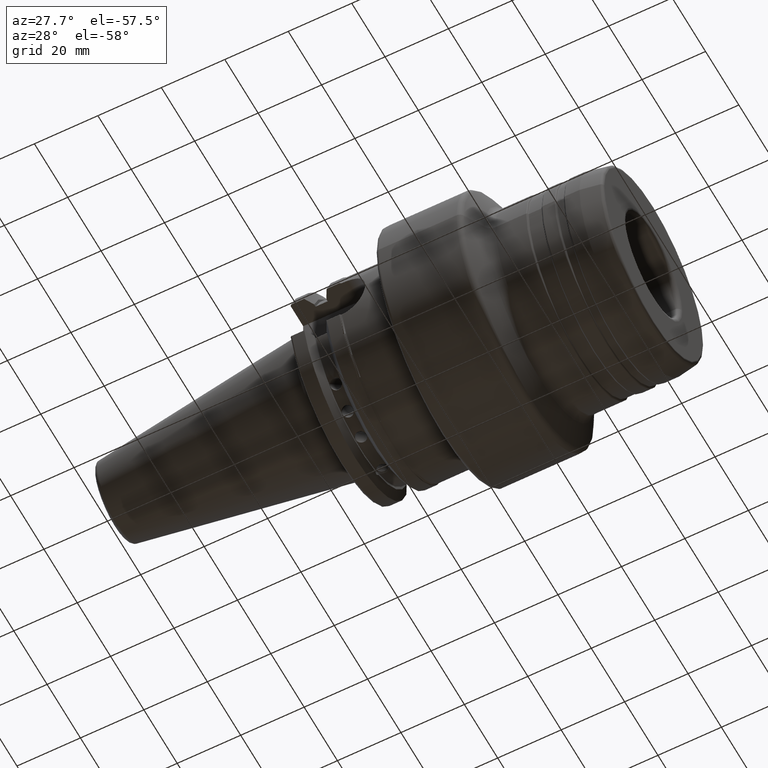
[diagram: clean part render]
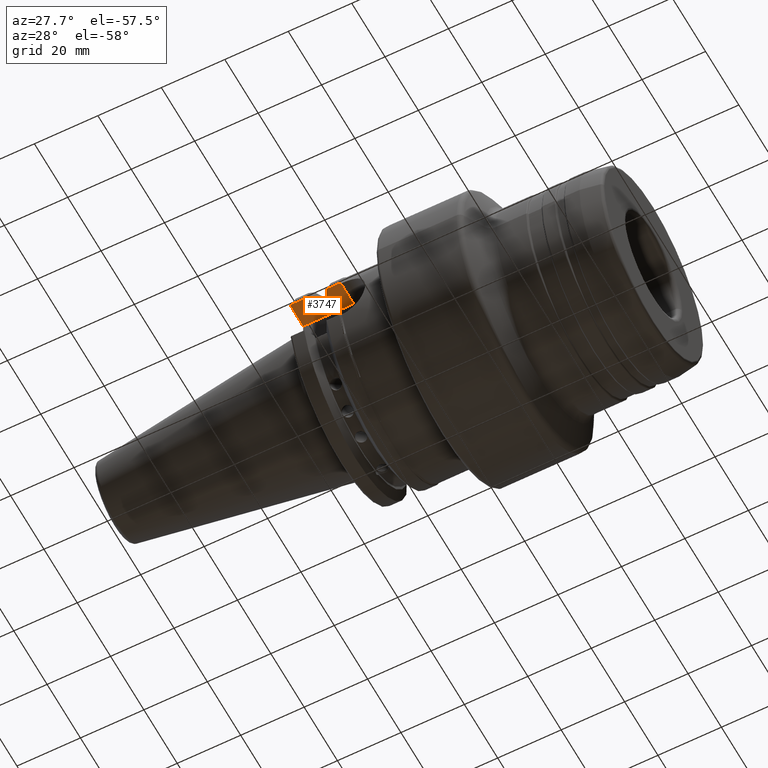
[diagram: same view with one face highlighted and labeled with its STEP entity id]
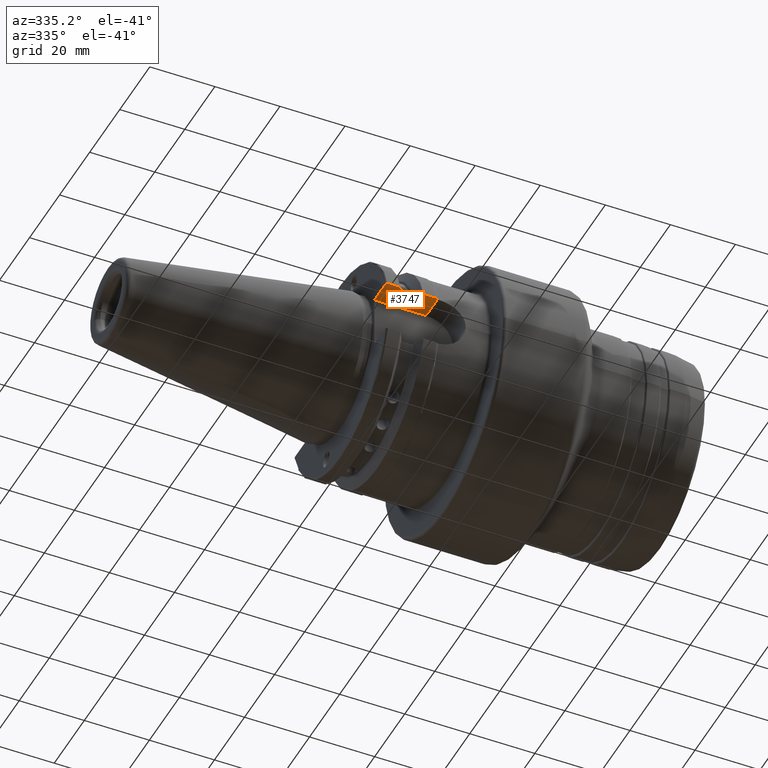
[diagram: same view with one face highlighted and labeled with its STEP entity id]
A machine part, auxiliary view. The second image highlights one B-rep face of the part: STEP entity #3747.
A second angle (auxiliary view) of the same face is appended — the face is thin or edge-on in the first view.
In plain terms, the highlighted planar face has unit normal (0, 0, 1).
Its self-contained STEP definition (entity closure, byte-faithful):
#184=DIRECTION('',(0.E0,1.E0,0.E0));
#185=VECTOR('',#184,2.894662439729E-1);
#186=CARTESIAN_POINT('',(1.25E-1,-1.187104039248E0,3.22E-1));
#187=LINE('',#186,#185);
#547=CARTESIAN_POINT('',(3.64E-1,-1.092536955897E0,3.22E-1));
#548=CARTESIAN_POINT('',(3.571028171112E-1,-1.104991274092E0,3.22E-1));
#549=CARTESIAN_POINT('',(3.431589723697E-1,-1.130135790249E0,3.22E-1));
#550=CARTESIAN_POINT('',(3.217979605852E-1,-1.168558196488E0,3.22E-1));
#551=CARTESIAN_POINT('',(3.072582409059E-1,-1.194649878777E0,3.22E-1));
#552=CARTESIAN_POINT('',(2.999141201200E-1,-1.207814555302E0,3.22E-1));
#598=DIRECTION('',(0.E0,1.E0,0.E0));
#599=VECTOR('',#598,3.235772576623E-2);
#600=CARTESIAN_POINT('',(3.64E-1,-1.092536955897E0,3.22E-1));
#601=LINE('',#600,#599);
#679=DIRECTION('',(1.E0,0.E0,0.E0));
#680=VECTOR('',#679,1.502747283333E-1);
#681=CARTESIAN_POINT('',(3.64E-1,-1.060179230130E0,3.22E-1));
#682=LINE('',#681,#680);
#817=DIRECTION('',(0.E0,1.E0,0.E0));
#818=VECTOR('',#817,3.235772576623E-2);
#819=CARTESIAN_POINT('',(5.142747283333E-1,-1.092536955897E0,3.22E-1));
#820=LINE('',#819,#818);
#903=CARTESIAN_POINT('',(5.142747283333E-1,-1.092536955897E0,3.22E-1));
#904=CARTESIAN_POINT('',(5.211719112222E-1,-1.104991274092E0,3.22E-1));
#905=CARTESIAN_POINT('',(5.351157559636E-1,-1.130135790249E0,3.22E-1));
#906=CARTESIAN_POINT('',(5.564767677481E-1,-1.168558196488E0,3.22E-1));
#907=CARTESIAN_POINT('',(5.710164874275E-1,-1.194649878777E0,3.22E-1));
#908=CARTESIAN_POINT('',(5.783606082134E-1,-1.207814555302E0,3.22E-1));
#1094=CARTESIAN_POINT('',(7.519685039370E-1,-1.199987351202E0,3.22E-1));
#1096=CARTESIAN_POINT('',(7.519685039370E-1,-1.199987351202E0,3.22E-1));
#1097=CARTESIAN_POINT('',(7.505256475699E-1,-1.200541999362E0,3.22E-1));
#1098=CARTESIAN_POINT('',(7.477256178040E-1,-1.201818855275E0,3.22E-1));
#1099=CARTESIAN_POINT('',(7.450932552625E-1,-1.203421783535E0,3.22E-1));
#1100=CARTESIAN_POINT('',(7.438196246653E-1,-1.204305988808E0,3.22E-1));
#1107=CARTESIAN_POINT('',(7.438196246653E-1,-1.204305988808E0,3.22E-1));
#1108=CARTESIAN_POINT('',(7.421395181253E-1,-1.205472385931E0,3.22E-1));
#1109=CARTESIAN_POINT('',(7.385850722802E-1,-1.207191315957E0,3.22E-1));
#1110=CARTESIAN_POINT('',(7.347057606796E-1,-1.207814555302E0,3.22E-1));
#1111=CARTESIAN_POINT('',(7.326794962334E-1,-1.207814555302E0,3.22E-1));
#1113=DIRECTION('',(0.E0,1.E0,0.E0));
#1114=VECTOR('',#1113,3.023495559259E-1);
#1115=CARTESIAN_POINT('',(7.519685039370E-1,-1.199987351202E0,3.22E-1));
#1116=LINE('',#1115,#1114);
#1117=DIRECTION('',(-1.E0,0.E0,0.E0));
#1118=VECTOR('',#1117,6.269685039370E-1);
#1119=CARTESIAN_POINT('',(7.519685039370E-1,-8.976377952756E-1,3.22E-1));
#1120=LINE('',#1119,#1118);
#1121=CARTESIAN_POINT('',(1.45E-1,-1.207814555302E0,3.22E-1));
#1122=CARTESIAN_POINT('',(1.423272624919E-1,-1.207814555302E0,3.22E-1));
#1123=CARTESIAN_POINT('',(1.373745970339E-1,-1.206794232201E0,3.22E-1));
#1124=CARTESIAN_POINT('',(1.305727101698E-1,-1.202269880855E0,3.22E-1));
#1125=CARTESIAN_POINT('',(1.260495795763E-1,-1.195216664259E0,3.22E-1));
#1126=CARTESIAN_POINT('',(1.25E-1,-1.189963431449E0,3.22E-1));
#1127=CARTESIAN_POINT('',(1.25E-1,-1.187104039248E0,3.22E-1));
#1156=DIRECTION('',(1.E0,0.E0,0.E0));
#1157=VECTOR('',#1156,1.549141201200E-1);
#1158=CARTESIAN_POINT('',(1.45E-1,-1.207814555302E0,3.22E-1));
#1159=LINE('',#1158,#1157);
#1168=DIRECTION('',(1.E0,0.E0,0.E0));
#1169=VECTOR('',#1168,1.543188880201E-1);
#1170=CARTESIAN_POINT('',(5.783606082134E-1,-1.207814555302E0,3.22E-1));
#1171=LINE('',#1170,#1169);
#2369=CARTESIAN_POINT('',(1.25E-1,-8.976377952756E-1,3.22E-1));
#2371=VERTEX_POINT('',#2369);
#2373=VERTEX_POINT('',#547);
#2374=VERTEX_POINT('',#552);
#2377=CARTESIAN_POINT('',(3.64E-1,-1.060179230130E0,3.22E-1));
#2378=VERTEX_POINT('',#2377);
#2381=CARTESIAN_POINT('',(5.142747283333E-1,-1.060179230130E0,3.22E-1));
#2382=VERTEX_POINT('',#2381);
#2385=CARTESIAN_POINT('',(5.142747283333E-1,-1.092536955897E0,3.22E-1));
#2386=VERTEX_POINT('',#2385);
#2389=VERTEX_POINT('',#908);
#2512=CARTESIAN_POINT('',(7.519685039370E-1,-8.976377952756E-1,3.22E-1));
#2514=VERTEX_POINT('',#2512);
#2531=VERTEX_POINT('',#1121);
#2532=VERTEX_POINT('',#1127);
#2717=CARTESIAN_POINT('',(7.326794962334E-1,-1.207814555302E0,3.22E-1));
#2718=VERTEX_POINT('',#2717);
#2733=VERTEX_POINT('',#1107);
#2734=VERTEX_POINT('',#1094);
#3723=CARTESIAN_POINT('',(1.25E-1,-8.976377952756E-1,3.22E-1));
#3724=DIRECTION('',(0.E0,0.E0,1.E0));
#3725=DIRECTION('',(1.E0,0.E0,0.E0));
#3726=AXIS2_PLACEMENT_3D('',#3723,#3724,#3725);
#3727=PLANE('',#3726);
#3728=ORIENTED_EDGE('',*,*,#3714,.F.);
#3729=ORIENTED_EDGE('',*,*,#3703,.F.);
#3730=ORIENTED_EDGE('',*,*,#3571,.T.);
#3732=ORIENTED_EDGE('',*,*,#3731,.T.);
#3733=ORIENTED_EDGE('',*,*,#2908,.F.);
#3735=ORIENTED_EDGE('',*,*,#3734,.F.);
#3737=ORIENTED_EDGE('',*,*,#3736,.T.);
#3738=ORIENTED_EDGE('',*,*,#3288,.F.);
#3739=ORIENTED_EDGE('',*,*,#3338,.T.);
#3740=ORIENTED_EDGE('',*,*,#3414,.T.);
#3741=ORIENTED_EDGE('',*,*,#3472,.F.);
#3742=ORIENTED_EDGE('',*,*,#3525,.T.);
#3744=ORIENTED_EDGE('',*,*,#3743,.T.);
#3745=EDGE_LOOP('',(#3728,#3729,#3730,#3732,#3733,#3735,#3737,#3738,#3739,#3740,
#3741,#3742,#3744));
#3746=FACE_OUTER_BOUND('',#3745,.F.);
#3747=ADVANCED_FACE('',(#3746),#3727,.F.);
#553=B_SPLINE_CURVE_WITH_KNOTS('',3,(#547,#548,#549,#550,#551,#552),
.UNSPECIFIED.,.F.,.F.,(4,1,1,4),(0.E0,3.333333333333E-1,6.666666666667E-1,1.E0),
.UNSPECIFIED.);
#909=B_SPLINE_CURVE_WITH_KNOTS('',3,(#903,#904,#905,#906,#907,#908),
.UNSPECIFIED.,.F.,.F.,(4,1,1,4),(0.E0,3.333333333333E-1,6.666666666667E-1,1.E0),
.UNSPECIFIED.);
#1101=B_SPLINE_CURVE_WITH_KNOTS('',3,(#1096,#1097,#1098,#1099,#1100),
.UNSPECIFIED.,.F.,.F.,(4,1,4),(0.E0,5.E-1,1.E0),.UNSPECIFIED.);
#1112=B_SPLINE_CURVE_WITH_KNOTS('',3,(#1107,#1108,#1109,#1110,#1111),
.UNSPECIFIED.,.F.,.F.,(4,1,4),(0.E0,5.E-1,1.E0),.UNSPECIFIED.);
#1128=B_SPLINE_CURVE_WITH_KNOTS('',3,(#1121,#1122,#1123,#1124,#1125,#1126,
#1127),.UNSPECIFIED.,.F.,.F.,(4,1,1,1,4),(0.E0,2.5E-1,5.E-1,7.5E-1,1.E0),
.UNSPECIFIED.);
#2908=EDGE_CURVE('',#2532,#2371,#187,.T.);
#3288=EDGE_CURVE('',#2373,#2374,#553,.T.);
#3338=EDGE_CURVE('',#2373,#2378,#601,.T.);
#3414=EDGE_CURVE('',#2378,#2382,#682,.T.);
#3472=EDGE_CURVE('',#2386,#2382,#820,.T.);
#3525=EDGE_CURVE('',#2386,#2389,#909,.T.);
#3571=EDGE_CURVE('',#2734,#2514,#1116,.T.);
#3703=EDGE_CURVE('',#2734,#2733,#1101,.T.);
#3714=EDGE_CURVE('',#2733,#2718,#1112,.T.);
#3731=EDGE_CURVE('',#2514,#2371,#1120,.T.);
#3734=EDGE_CURVE('',#2531,#2532,#1128,.T.);
#3736=EDGE_CURVE('',#2531,#2374,#1159,.T.);
#3743=EDGE_CURVE('',#2389,#2718,#1171,.T.);